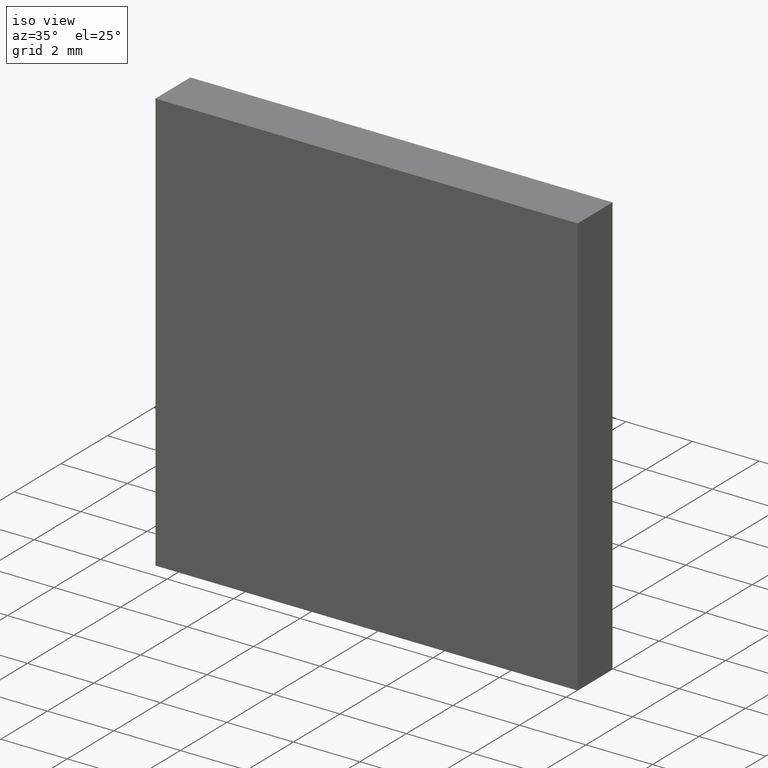
[diagram: clean part render]
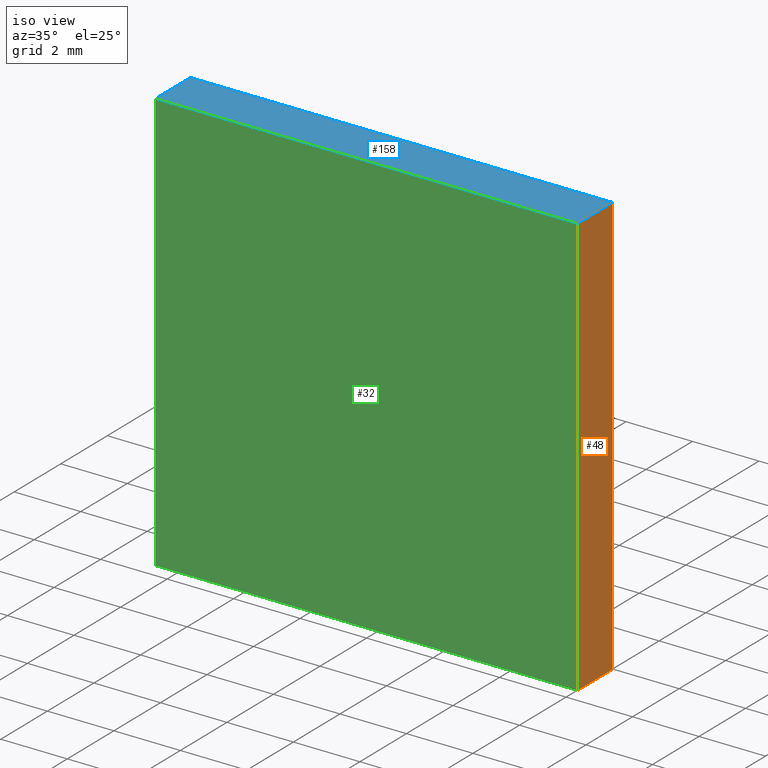
[diagram: same view with three faces highlighted in distinct colors, each labeled with its STEP entity id]
A machine part, iso view with three faces highlighted in distinct colors.
Their STEP definitions:

[orange] entity #48 — the highlighted planar face has unit normal (-1, 0, 0).
#10 = CARTESIAN_POINT ( 'NONE',  ( 6.349999999999998800, 0.0000000000000000000, 6.349999999999999600 ) ) ;
#15 = DIRECTION ( 'NONE',  ( -0.0000000000000000000, -1.000000000000000000, -0.0000000000000000000 ) ) ;
#29 = CARTESIAN_POINT ( 'NONE',  ( 6.349999999999998800, 1.500000000000000000, 6.349999999999999600 ) ) ;
#30 = DIRECTION ( 'NONE',  ( 0.0000000000000000000, 0.0000000000000000000, -1.000000000000000000 ) ) ;
#39 = LINE ( 'NONE', #29, #128 ) ;
#46 = LINE ( 'NONE', #10, #85 ) ;
#48 = ADVANCED_FACE ( 'NONE', ( #186 ), #135, .F. ) ;
#50 = DIRECTION ( 'NONE',  ( 0.0000000000000000000, 0.0000000000000000000, -1.000000000000000000 ) ) ;
#51 = LINE ( 'NONE', #124, #114 ) ;
#52 = VECTOR ( 'NONE', #201, 1000.000000000000000 ) ;
#55 = DIRECTION ( 'NONE',  ( -1.000000000000000000, 0.0000000000000000000, 0.0000000000000000000 ) ) ;
#68 = VERTEX_POINT ( 'NONE', #151 ) ;
#70 = CARTESIAN_POINT ( 'NONE',  ( 6.349999999999998800, 1.500000000000000000, -6.349999999999999600 ) ) ;
#71 = CARTESIAN_POINT ( 'NONE',  ( 6.349999999999998800, 1.500000000000000000, 6.349999999999999600 ) ) ;
#85 = VECTOR ( 'NONE', #50, 1000.000000000000000 ) ;
#94 = CARTESIAN_POINT ( 'NONE',  ( 6.349999999999998800, 1.500000000000000000, -6.349999999999999600 ) ) ;
#107 = VERTEX_POINT ( 'NONE', #70 ) ;
#114 = VECTOR ( 'NONE', #15, 1000.000000000000000 ) ;
#119 = VERTEX_POINT ( 'NONE', #120 ) ;
#120 = CARTESIAN_POINT ( 'NONE',  ( 6.349999999999998800, 0.0000000000000000000, 6.349999999999999600 ) ) ;
#124 = CARTESIAN_POINT ( 'NONE',  ( 6.349999999999998800, 1.500000000000000000, 6.349999999999999600 ) ) ;
#128 = VECTOR ( 'NONE', #30, 1000.000000000000000 ) ;
#135 = PLANE ( 'NONE',  #152 ) ;
#139 = VERTEX_POINT ( 'NONE', #178 ) ;
#140 = EDGE_CURVE ( 'NONE', #139, #107, #39, .T. ) ;
#142 = EDGE_CURVE ( 'NONE', #119, #68, #46, .T. ) ;
#143 = EDGE_LOOP ( 'NONE', ( #173, #176, #191, #159 ) ) ;
#147 = DIRECTION ( 'NONE',  ( 0.0000000000000000000, 0.0000000000000000000, 1.000000000000000000 ) ) ;
#151 = CARTESIAN_POINT ( 'NONE',  ( 6.349999999999998800, 0.0000000000000000000, -6.349999999999999600 ) ) ;
#152 = AXIS2_PLACEMENT_3D ( 'NONE', #71, #55, #147 ) ;
#159 = ORIENTED_EDGE ( 'NONE', *, *, #189, .T. ) ;
#166 = LINE ( 'NONE', #94, #52 ) ;
#173 = ORIENTED_EDGE ( 'NONE', *, *, #142, .T. ) ;
#176 = ORIENTED_EDGE ( 'NONE', *, *, #192, .F. ) ;
#178 = CARTESIAN_POINT ( 'NONE',  ( 6.349999999999998800, 1.500000000000000000, 6.349999999999999600 ) ) ;
#186 = FACE_OUTER_BOUND ( 'NONE', #143, .T. ) ;
#189 = EDGE_CURVE ( 'NONE', #139, #119, #51, .T. ) ;
#191 = ORIENTED_EDGE ( 'NONE', *, *, #140, .F. ) ;
#192 = EDGE_CURVE ( 'NONE', #107, #68, #166, .T. ) ;
#201 = DIRECTION ( 'NONE',  ( -0.0000000000000000000, -1.000000000000000000, -0.0000000000000000000 ) ) ;

[blue] entity #158 — the highlighted planar face has unit normal (0, 0, -1).
#5 = FACE_OUTER_BOUND ( 'NONE', #101, .T. ) ;
#9 = CARTESIAN_POINT ( 'NONE',  ( -6.350000000000000500, 1.500000000000000000, 6.349999999999999600 ) ) ;
#13 = AXIS2_PLACEMENT_3D ( 'NONE', #42, #34, #19 ) ;
#15 = DIRECTION ( 'NONE',  ( -0.0000000000000000000, -1.000000000000000000, -0.0000000000000000000 ) ) ;
#19 = DIRECTION ( 'NONE',  ( -1.000000000000000000, 0.0000000000000000000, -0.0000000000000000000 ) ) ;
#20 = ORIENTED_EDGE ( 'NONE', *, *, #61, .T. ) ;
#26 = CARTESIAN_POINT ( 'NONE',  ( -6.350000000000000500, 0.0000000000000000000, 6.349999999999999600 ) ) ;
#28 = VECTOR ( 'NONE', #74, 1000.000000000000000 ) ;
#33 = EDGE_CURVE ( 'NONE', #87, #123, #82, .T. ) ;
#34 = DIRECTION ( 'NONE',  ( 0.0000000000000000000, 0.0000000000000000000, -1.000000000000000000 ) ) ;
#42 = CARTESIAN_POINT ( 'NONE',  ( -6.350000000000000500, 1.500000000000000000, 6.349999999999999600 ) ) ;
#51 = LINE ( 'NONE', #124, #114 ) ;
#56 = ORIENTED_EDGE ( 'NONE', *, *, #33, .T. ) ;
#61 = EDGE_CURVE ( 'NONE', #123, #119, #73, .T. ) ;
#64 = ORIENTED_EDGE ( 'NONE', *, *, #189, .F. ) ;
#73 = LINE ( 'NONE', #26, #126 ) ;
#74 = DIRECTION ( 'NONE',  ( -0.0000000000000000000, -1.000000000000000000, -0.0000000000000000000 ) ) ;
#75 = CARTESIAN_POINT ( 'NONE',  ( -6.350000000000000500, 0.0000000000000000000, 6.349999999999999600 ) ) ;
#82 = LINE ( 'NONE', #175, #28 ) ;
#86 = DIRECTION ( 'NONE',  ( 1.000000000000000000, 0.0000000000000000000, 0.0000000000000000000 ) ) ;
#87 = VERTEX_POINT ( 'NONE', #9 ) ;
#101 = EDGE_LOOP ( 'NONE', ( #20, #64, #134, #56 ) ) ;
#112 = EDGE_CURVE ( 'NONE', #87, #139, #130, .T. ) ;
#114 = VECTOR ( 'NONE', #15, 1000.000000000000000 ) ;
#119 = VERTEX_POINT ( 'NONE', #120 ) ;
#120 = CARTESIAN_POINT ( 'NONE',  ( 6.349999999999998800, 0.0000000000000000000, 6.349999999999999600 ) ) ;
#123 = VERTEX_POINT ( 'NONE', #75 ) ;
#124 = CARTESIAN_POINT ( 'NONE',  ( 6.349999999999998800, 1.500000000000000000, 6.349999999999999600 ) ) ;
#126 = VECTOR ( 'NONE', #86, 1000.000000000000000 ) ;
#127 = PLANE ( 'NONE',  #13 ) ;
#130 = LINE ( 'NONE', #194, #148 ) ;
#134 = ORIENTED_EDGE ( 'NONE', *, *, #112, .F. ) ;
#139 = VERTEX_POINT ( 'NONE', #178 ) ;
#145 = DIRECTION ( 'NONE',  ( 1.000000000000000000, 0.0000000000000000000, 0.0000000000000000000 ) ) ;
#148 = VECTOR ( 'NONE', #145, 1000.000000000000000 ) ;
#158 = ADVANCED_FACE ( 'NONE', ( #5 ), #127, .F. ) ;
#175 = CARTESIAN_POINT ( 'NONE',  ( -6.350000000000000500, 1.500000000000000000, 6.349999999999999600 ) ) ;
#178 = CARTESIAN_POINT ( 'NONE',  ( 6.349999999999998800, 1.500000000000000000, 6.349999999999999600 ) ) ;
#189 = EDGE_CURVE ( 'NONE', #139, #119, #51, .T. ) ;
#194 = CARTESIAN_POINT ( 'NONE',  ( -6.350000000000000500, 1.500000000000000000, 6.349999999999999600 ) ) ;

[green] entity #32 — the highlighted planar face has unit normal (0, -1, 0).
#2 = DIRECTION ( 'NONE',  ( 0.0000000000000000000, -0.0000000000000000000, -1.000000000000000000 ) ) ;
#3 = ORIENTED_EDGE ( 'NONE', *, *, #61, .F. ) ;
#7 = ORIENTED_EDGE ( 'NONE', *, *, #102, .F. ) ;
#8 = CARTESIAN_POINT ( 'NONE',  ( -6.350000000000000500, 0.0000000000000000000, -6.349999999999999600 ) ) ;
#10 = CARTESIAN_POINT ( 'NONE',  ( 6.349999999999998800, 0.0000000000000000000, 6.349999999999999600 ) ) ;
#12 = CARTESIAN_POINT ( 'NONE',  ( 0.0000000000000000000, 0.0000000000000000000, 0.0000000000000000000 ) ) ;
#26 = CARTESIAN_POINT ( 'NONE',  ( -6.350000000000000500, 0.0000000000000000000, 6.349999999999999600 ) ) ;
#32 = ADVANCED_FACE ( 'NONE', ( #144 ), #121, .T. ) ;
#41 = LINE ( 'NONE', #104, #141 ) ;
#46 = LINE ( 'NONE', #10, #85 ) ;
#50 = DIRECTION ( 'NONE',  ( 0.0000000000000000000, 0.0000000000000000000, -1.000000000000000000 ) ) ;
#61 = EDGE_CURVE ( 'NONE', #123, #119, #73, .T. ) ;
#65 = VECTOR ( 'NONE', #174, 1000.000000000000000 ) ;
#68 = VERTEX_POINT ( 'NONE', #151 ) ;
#73 = LINE ( 'NONE', #26, #126 ) ;
#75 = CARTESIAN_POINT ( 'NONE',  ( -6.350000000000000500, 0.0000000000000000000, 6.349999999999999600 ) ) ;
#83 = CARTESIAN_POINT ( 'NONE',  ( -6.350000000000000500, 0.0000000000000000000, 6.349999999999999600 ) ) ;
#85 = VECTOR ( 'NONE', #50, 1000.000000000000000 ) ;
#86 = DIRECTION ( 'NONE',  ( 1.000000000000000000, 0.0000000000000000000, 0.0000000000000000000 ) ) ;
#89 = EDGE_CURVE ( 'NONE', #68, #111, #41, .T. ) ;
#96 = EDGE_LOOP ( 'NONE', ( #185, #3, #7, #106 ) ) ;
#102 = EDGE_CURVE ( 'NONE', #111, #123, #116, .T. ) ;
#104 = CARTESIAN_POINT ( 'NONE',  ( -6.350000000000000500, 0.0000000000000000000, -6.349999999999999600 ) ) ;
#106 = ORIENTED_EDGE ( 'NONE', *, *, #89, .F. ) ;
#111 = VERTEX_POINT ( 'NONE', #8 ) ;
#116 = LINE ( 'NONE', #83, #65 ) ;
#119 = VERTEX_POINT ( 'NONE', #120 ) ;
#120 = CARTESIAN_POINT ( 'NONE',  ( 6.349999999999998800, 0.0000000000000000000, 6.349999999999999600 ) ) ;
#121 = PLANE ( 'NONE',  #131 ) ;
#123 = VERTEX_POINT ( 'NONE', #75 ) ;
#126 = VECTOR ( 'NONE', #86, 1000.000000000000000 ) ;
#131 = AXIS2_PLACEMENT_3D ( 'NONE', #12, #187, #2 ) ;
#141 = VECTOR ( 'NONE', #146, 1000.000000000000000 ) ;
#142 = EDGE_CURVE ( 'NONE', #119, #68, #46, .T. ) ;
#144 = FACE_OUTER_BOUND ( 'NONE', #96, .T. ) ;
#146 = DIRECTION ( 'NONE',  ( -1.000000000000000000, -0.0000000000000000000, -0.0000000000000000000 ) ) ;
#151 = CARTESIAN_POINT ( 'NONE',  ( 6.349999999999998800, 0.0000000000000000000, -6.349999999999999600 ) ) ;
#174 = DIRECTION ( 'NONE',  ( -0.0000000000000000000, -0.0000000000000000000, 1.000000000000000000 ) ) ;
#185 = ORIENTED_EDGE ( 'NONE', *, *, #142, .F. ) ;
#187 = DIRECTION ( 'NONE',  ( 0.0000000000000000000, -1.000000000000000000, 0.0000000000000000000 ) ) ;